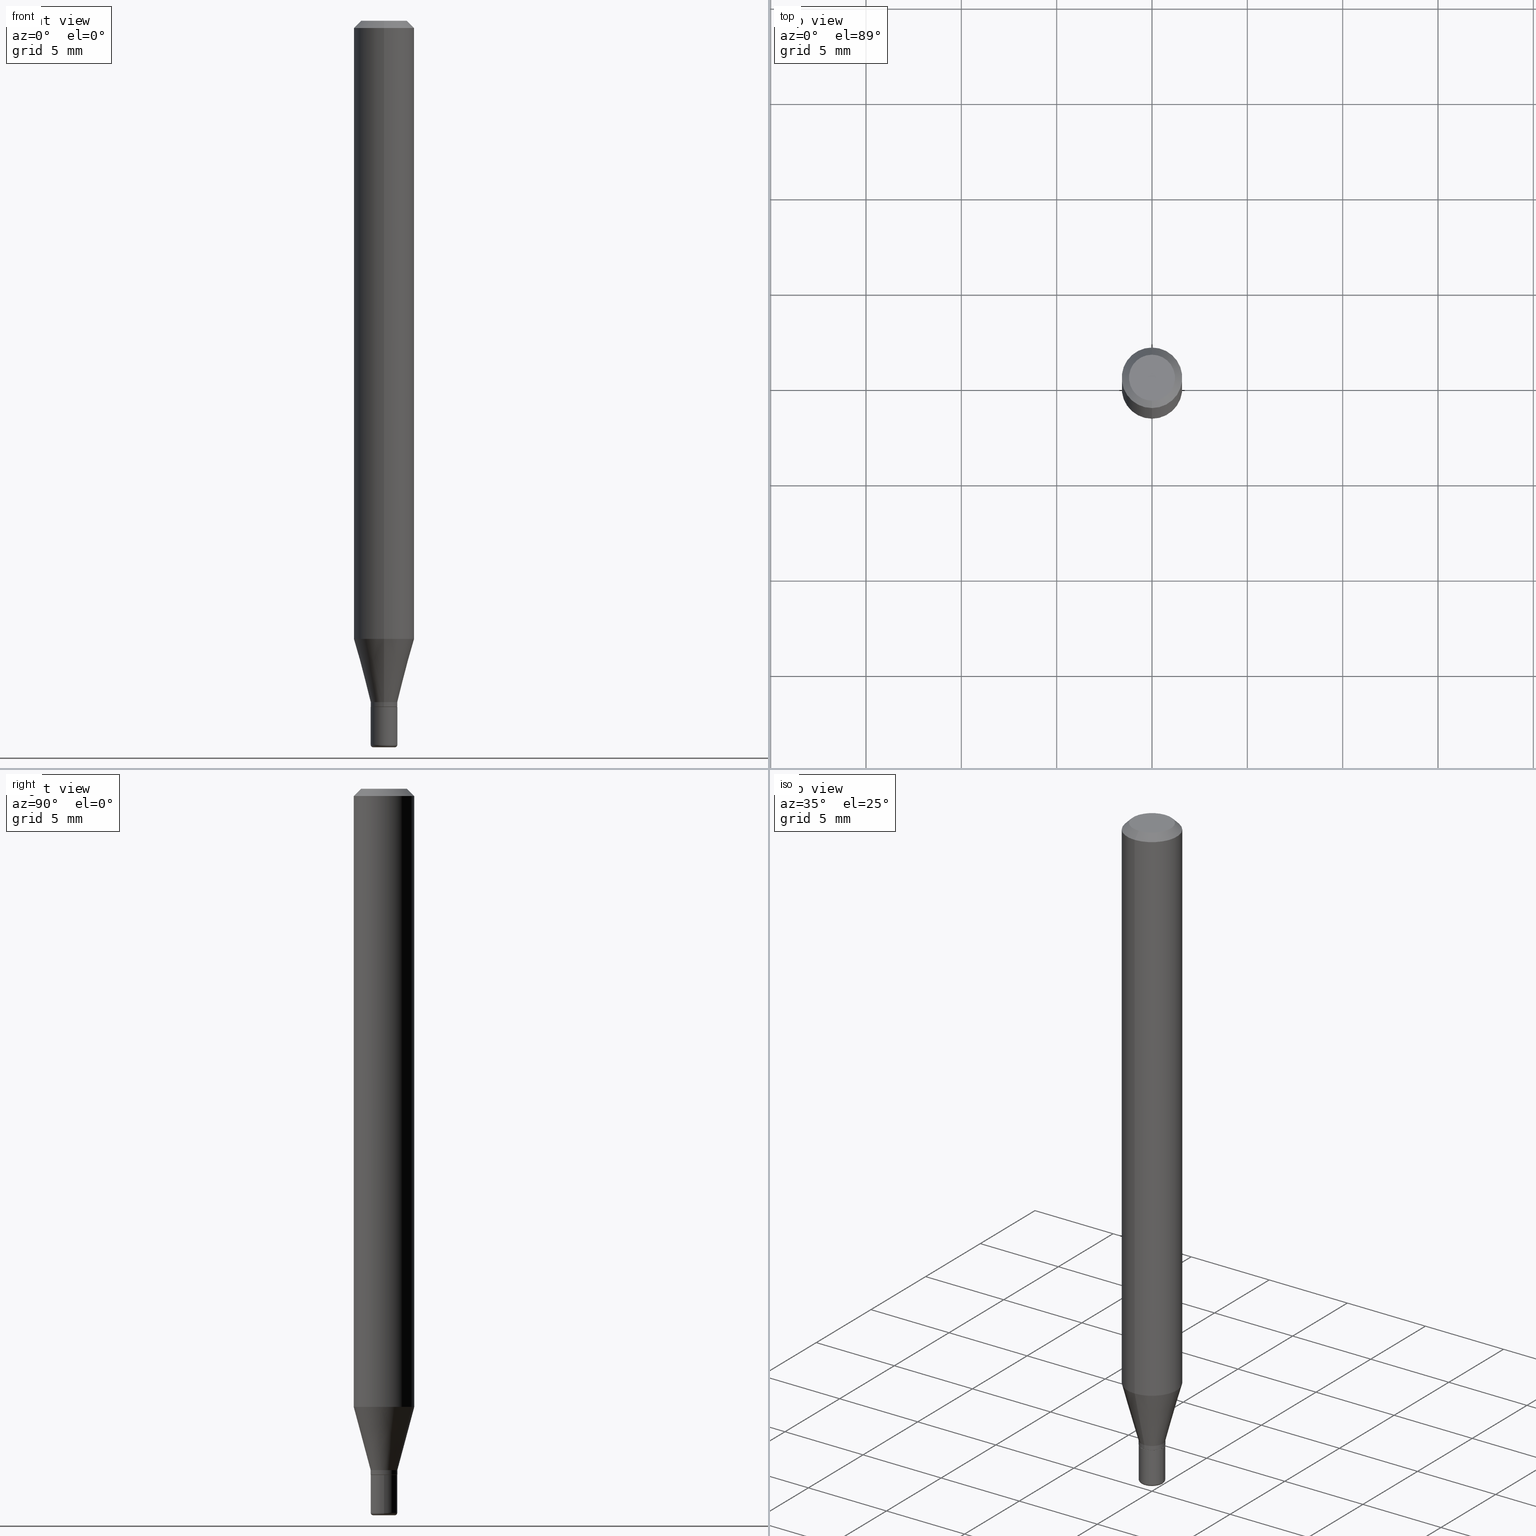
[diagram: canonical four-view strip — front | top / right | iso, engineering-drawing reading convention]
A machine part, canonical four-view strip (front | top / right | iso — engineering-drawing reading convention). The complete STEP part file that produces these views, byte-faithful:
ISO-10303-21;
HEADER;
FILE_DESCRIPTION (( 'STEP AP203' ),
    '1' );
FILE_NAME ('09152.STEP',
    '2024-02-29T22:43:10',
    ( '' ),
    ( '' ),
    'SwSTEP 2.0',
    'SolidWorks 2023',
    '' );
FILE_SCHEMA (( 'CONFIG_CONTROL_DESIGN' ));
ENDSEC;

DATA;
#1 = DIRECTION ( 'NONE',  ( -6.982962677686265922E-15, -1.000000000000000000, 3.491536060866079986E-15 ) ) ;
#2 = DIRECTION ( 'NONE',  ( -2.445430594000756604E-29, 3.491536060866079986E-15, 1.000000000000000000 ) ) ;
#3 = CARTESIAN_POINT ( 'NONE',  ( 3.465175151699072961E-29, -4.947506598247235895E-15, -1.417000000000000259 ) ) ;
#4 = CIRCLE ( 'NONE', #404, 0.02750000000000010075 ) ;
#5 = ORIENTED_EDGE ( 'NONE', *, *, #496, .F. ) ;
#6 = EDGE_CURVE ( 'NONE', #331, #274, #177, .T. ) ;
#7 = DIRECTION ( 'NONE',  ( -6.982962677686265922E-15, -1.000000000000000000, 0.000000000000000000 ) ) ;
#8 = CARTESIAN_POINT ( 'NONE',  ( 3.440720845759065849E-29, -4.912591237638575836E-15, -1.407000000000000250 ) ) ;
#9 = LINE ( 'NONE', #488, #160 ) ;
#10 = CARTESIAN_POINT ( 'NONE',  ( -1.885399922974951451E-16, -0.02700000000000503733, -1.417000000000000259 ) ) ;
#11 = CIRCLE ( 'NONE', #285, 0.06250000000000000000 ) ;
#12 = VECTOR ( 'NONE', #203, 39.37007874015748143 ) ;
#13 = COORDINATED_UNIVERSAL_TIME_OFFSET ( 5, 0, .BEHIND. ) ;
#14 = DATE_AND_TIME ( #370, #162 ) ;
#15 = ORIENTED_EDGE ( 'NONE', *, *, #238, .F. ) ;
#16 = EDGE_CURVE ( 'NONE', #104, #272, #148, .T. ) ;
#17 = VECTOR ( 'NONE', #33, 39.37007874015748143 ) ;
#18 = SHAPE_DEFINITION_REPRESENTATION ( #433, #366 ) ;
#19 = CARTESIAN_POINT ( 'NONE',  ( 3.655975865246779122E-29, -5.219764601570503141E-15, -1.495000000000000107 ) ) ;
#20 = EDGE_LOOP ( 'NONE', ( #381, #106 ) ) ;
#21 = PERSON_AND_ORGANIZATION ( #183, #117 ) ;
#22 = DIRECTION ( 'NONE',  ( -2.445430594000756604E-29, 3.491536060866079986E-15, 1.000000000000000000 ) ) ;
#23 = EDGE_LOOP ( 'NONE', ( #450, #200, #353, #420 ) ) ;
#24 = PLANE ( 'NONE',  #432 ) ;
#25 = VERTEX_POINT ( 'NONE', #324 ) ;
#26 = AXIS2_PLACEMENT_3D ( 'NONE', #393, #354, #511 ) ;
#27 = LINE ( 'NONE', #194, #277 ) ;
#28 = EDGE_LOOP ( 'NONE', ( #469, #120, #59, #100 ) ) ;
#29 = CARTESIAN_POINT ( 'NONE',  ( 3.840629472727447874E-16, 0.04750000000000000749, 1.073394357713768884E-16 ) ) ;
#30 = ORIENTED_EDGE ( 'NONE', *, *, #207, .F. ) ;
#31 = DIRECTION ( 'NONE',  ( -2.445430594000756604E-29, 3.491536060866079986E-15, 1.000000000000000000 ) ) ;
#32 = ORIENTED_EDGE ( 'NONE', *, *, #304, .F. ) ;
#33 = DIRECTION ( 'NONE',  ( -2.445430594000756604E-29, 3.491536060866079986E-15, 1.000000000000000000 ) ) ;
#34 = CIRCLE ( 'NONE', #492, 0.02249999999999999917 ) ;
#35 = AXIS2_PLACEMENT_3D ( 'NONE', #239, #37, #107 ) ;
#36 = ORIENTED_EDGE ( 'NONE', *, *, #427, .T. ) ;
#37 = DIRECTION ( 'NONE',  ( -2.445430594000756604E-29, 3.491536060866079986E-15, 1.000000000000000000 ) ) ;
#38 = DIRECTION ( 'NONE',  ( -6.982962677686265922E-15, -1.000000000000000000, 3.483106191921935554E-15 ) ) ;
#39 = EDGE_CURVE ( 'NONE', #351, #338, #4, .T. ) ;
#40 = CARTESIAN_POINT ( 'NONE',  ( 3.463952436402072633E-29, -4.945760830216803404E-15, -1.416500000000000314 ) ) ;
#41 = DIRECTION ( 'NONE',  ( 1.000000000000000000, -6.982962677686269077E-15, 0.000000000000000000 ) ) ;
#42 = CARTESIAN_POINT ( 'NONE',  ( 3.655975865246778562E-29, -5.219764601570502352E-15, -1.494999999999999662 ) ) ;
#43 = EDGE_CURVE ( 'NONE', #502, #195, #11, .T. ) ;
#44 = TOROIDAL_SURFACE ( 'NONE', #441, 0.02249999999999999917, 0.005000000000000179648 ) ;
#45 = DESIGN_CONTEXT ( 'detailed design', #439, 'design' ) ;
#46 = CARTESIAN_POINT ( 'NONE',  ( 1.953992523340626318E-16, 0.02749999999999518802, -1.407000000000000250 ) ) ;
#47 = PERSON_AND_ORGANIZATION_ROLE ( 'design_owner' ) ;
#48 = CARTESIAN_POINT ( 'NONE',  ( 3.440720845759065849E-29, -4.912591237638575836E-15, -1.407000000000000250 ) ) ;
#49 = AXIS2_PLACEMENT_3D ( 'NONE', #473, #281, #438 ) ;
#50 = APPROVAL_PERSON_ORGANIZATION ( #413, #70, #217 ) ;
#51 = LENGTH_MEASURE_WITH_UNIT ( LENGTH_MEASURE( 0.02539999999999999897 ), #298 );
#52 = DIRECTION ( 'NONE',  ( -2.445468806185136597E-29, 3.491481338843145583E-15, 1.000000000000000000 ) ) ;
#53 = CARTESIAN_POINT ( 'NONE',  ( 0.000000000000000000, 0.000000000000000000, 0.000000000000000000 ) ) ;
#54 = DIRECTION ( 'NONE',  ( -6.982962677686265922E-15, -1.000000000000000000, 3.491536060866079986E-15 ) ) ;
#55 = ORIENTED_EDGE ( 'NONE', *, *, #484, .F. ) ;
#56 =( GEOMETRIC_REPRESENTATION_CONTEXT ( 3 ) GLOBAL_UNCERTAINTY_ASSIGNED_CONTEXT ( ( #211 ) ) GLOBAL_UNIT_ASSIGNED_CONTEXT ( ( #213, #290, #448 ) ) REPRESENTATION_CONTEXT ( 'NONE', 'WORKASPACE' ) );
#57 = SECURITY_CLASSIFICATION ( '', '', #379 ) ;
#58 = DIRECTION ( 'NONE',  ( 1.000000000000000000, -6.982962677686280121E-15, 0.000000000000000000 ) ) ;
#59 = ORIENTED_EDGE ( 'NONE', *, *, #447, .T. ) ;
#60 = CARTESIAN_POINT ( 'NONE',  ( 3.465175151699072961E-29, -4.947506598247235895E-15, -1.417000000000000259 ) ) ;
#61 = ORIENTED_EDGE ( 'NONE', *, *, #397, .F. ) ;
#62 = EDGE_CURVE ( 'NONE', #223, #108, #477, .T. ) ;
#63 = CARTESIAN_POINT ( 'NONE',  ( -3.773273898774340269E-16, -0.04750000000000000749, 4.390353615536545300E-16 ) ) ;
#64 = ORIENTED_EDGE ( 'NONE', *, *, #92, .T. ) ;
#65 = AXIS2_PLACEMENT_3D ( 'NONE', #171, #52, #407 ) ;
#66 = EDGE_CURVE ( 'NONE', #346, #475, #357, .T. ) ;
#67 = VECTOR ( 'NONE', #208, 39.37007874015748143 ) ;
#68 = LINE ( 'NONE', #437, #77 ) ;
#69 = EDGE_LOOP ( 'NONE', ( #461, #491, #55, #426 ) ) ;
#70 = APPROVAL ( #408, 'UNSPECIFIED' ) ;
#71 = DIRECTION ( 'NONE',  ( -6.982962677686265922E-15, -1.000000000000000000, 4.370956789862821150E-15 ) ) ;
#72 = EDGE_LOOP ( 'NONE', ( #5, #118, #36, #276 ) ) ;
#73 = FACE_OUTER_BOUND ( 'NONE', #166, .T. ) ;
#74 = FACE_OUTER_BOUND ( 'NONE', #269, .T. ) ;
#75 = CIRCLE ( 'NONE', #192, 0.02750000000000010075 ) ;
#76 = CARTESIAN_POINT ( 'NONE',  ( -4.287811248607203282E-16, -0.06250000000000005551, -0.01499999999999948597 ) ) ;
#77 = VECTOR ( 'NONE', #517, 39.37007874015748143 ) ;
#78 = CARTESIAN_POINT ( 'NONE',  ( 3.440720845759065849E-29, -4.912591237638575836E-15, -1.407000000000000250 ) ) ;
#79 = PRODUCT_RELATED_PRODUCT_CATEGORY ( 'detail', '', ( #297 ) ) ;
#80 = ADVANCED_FACE ( 'NONE', ( #206 ), #212, .T. ) ;
#81 = ADVANCED_FACE ( 'NONE', ( #74 ), #244, .T. ) ;
#82 = CYLINDRICAL_SURFACE ( 'NONE', #94, 0.06250000000000000000 ) ;
#83 = DIRECTION ( 'NONE',  ( -6.982962677686265133E-15, -1.000000000000000000, 3.491536060866079986E-15 ) ) ;
#84 = PERSON_AND_ORGANIZATION ( #183, #117 ) ;
#85 = CARTESIAN_POINT ( 'NONE',  ( -0.02249999999999999917, -5.059892486024480852E-15, -1.495000000000000107 ) ) ;
#86 = PERSON_AND_ORGANIZATION_ROLE ( 'creator' ) ;
#87 = AXIS2_PLACEMENT_3D ( 'NONE', #260, #299, #409 ) ;
#88 = TOROIDAL_SURFACE ( 'NONE', #405, 0.02249999999999999917, 0.005000000000000179648 ) ;
#89 = ORIENTED_EDGE ( 'NONE', *, *, #157, .T. ) ;
#90 = APPLICATION_PROTOCOL_DEFINITION ( 'international standard', 'config_control_design', 1994, #439 ) ;
#91 = DIRECTION ( 'NONE',  ( 1.000000000000000000, 0.000000000000000000, 0.000000000000000000 ) ) ;
#92 = EDGE_CURVE ( 'NONE', #223, #510, #34, .T. ) ;
#93 = AXIS2_PLACEMENT_3D ( 'NONE', #374, #136, #271 ) ;
#94 = AXIS2_PLACEMENT_3D ( 'NONE', #359, #356, #1 ) ;
#95 = FACE_OUTER_BOUND ( 'NONE', #23, .T. ) ;
#96 = EDGE_LOOP ( 'NONE', ( #240, #185, #518, #495 ) ) ;
#97 = ADVANCED_FACE ( 'NONE', ( #210 ), #365, .F. ) ;
#98 = CC_DESIGN_PERSON_AND_ORGANIZATION_ASSIGNMENT ( #258, #47, ( #297 ) ) ;
#99 = CARTESIAN_POINT ( 'NONE',  ( -4.364351673553916201E-16, -0.06250000000000000000, 2.182210038041299992E-16 ) ) ;
#100 = ORIENTED_EDGE ( 'NONE', *, *, #347, .F. ) ;
#101 = VECTOR ( 'NONE', #267, 39.37007874015748143 ) ;
#102 = DIRECTION ( 'NONE',  ( -2.445468806185136597E-29, 3.491481338843145583E-15, 1.000000000000000000 ) ) ;
#103 = CC_DESIGN_PERSON_AND_ORGANIZATION_ASSIGNMENT ( #428, #221, ( #471 ) ) ;
#104 = VERTEX_POINT ( 'NONE', #10 ) ;
#105 = DIRECTION ( 'NONE',  ( -2.445468806185136597E-29, 3.491481338843145583E-15, 1.000000000000000000 ) ) ;
#106 = ORIENTED_EDGE ( 'NONE', *, *, #198, .T. ) ;
#107 = DIRECTION ( 'NONE',  ( -6.982962677686265922E-15, -1.000000000000000000, 0.000000000000000000 ) ) ;
#108 = VERTEX_POINT ( 'NONE', #490 ) ;
#109 = EDGE_CURVE ( 'NONE', #338, #351, #75, .T. ) ;
#110 = CC_DESIGN_APPROVAL ( #138, ( #471 ) ) ;
#111 = DIRECTION ( 'NONE',  ( -6.982962677686265922E-15, -1.000000000000000000, 0.000000000000000000 ) ) ;
#112 = CARTESIAN_POINT ( 'NONE',  ( 3.465229298364339647E-29, -4.947429057140738329E-15, -1.417000000000000259 ) ) ;
#113 = ORIENTED_EDGE ( 'NONE', *, *, #337, .T. ) ;
#114 = CARTESIAN_POINT ( 'NONE',  ( 3.465229298364339647E-29, -4.947429057140738329E-15, -1.417000000000000259 ) ) ;
#115 = ORIENTED_EDGE ( 'NONE', *, *, #500, .F. ) ;
#116 = LINE ( 'NONE', #361, #125 ) ;
#117 = ORGANIZATION ( 'UNSPECIFIED', 'UNSPECIFIED', '' ) ;
#118 = ORIENTED_EDGE ( 'NONE', *, *, #109, .T. ) ;
#119 = APPROVAL_DATE_TIME ( #14, #70 ) ;
#120 = ORIENTED_EDGE ( 'NONE', *, *, #500, .T. ) ;
#121 = APPROVAL_STATUS ( 'not_yet_approved' ) ;
#122 = DIRECTION ( 'NONE',  ( -2.445468806185136597E-29, 3.491481338843145583E-15, 1.000000000000000000 ) ) ;
#123 = DIRECTION ( 'NONE',  ( -6.982962677686265922E-15, -1.000000000000000000, 0.000000000000000000 ) ) ;
#124 = CONICAL_SURFACE ( 'NONE', #292, 0.02700000000000008990, 0.7853981633975507526 ) ;
#125 = VECTOR ( 'NONE', #280, 39.37007874015748854 ) ;
#126 = DATE_AND_TIME ( #169, #202 ) ;
#127 = DIRECTION ( 'NONE',  ( -2.445430594000756604E-29, 3.491536060866079986E-15, 1.000000000000000000 ) ) ;
#128 = PERSON_AND_ORGANIZATION_ROLE ( 'creator' ) ;
#129 = ADVANCED_FACE ( 'NONE', ( #301 ), #415, .T. ) ;
#130 = AXIS2_PLACEMENT_3D ( 'NONE', #219, #22, #234 ) ;
#131 = ORIENTED_EDGE ( 'NONE', *, *, #164, .F. ) ;
#132 = VECTOR ( 'NONE', #214, 39.37007874015748143 ) ;
#133 = DIRECTION ( 'NONE',  ( -2.445430594000756604E-29, 3.491536060866079986E-15, 1.000000000000000000 ) ) ;
#134 = ORIENTED_EDGE ( 'NONE', *, *, #427, .F. ) ;
#135 = COORDINATED_UNIVERSAL_TIME_OFFSET ( 5, 0, .BEHIND. ) ;
#136 = DIRECTION ( 'NONE',  ( -2.445430594000756604E-29, 3.491536060866079986E-15, 1.000000000000000000 ) ) ;
#137 = ORIENTED_EDGE ( 'NONE', *, *, #447, .F. ) ;
#138 = APPROVAL ( #121, 'UNSPECIFIED' ) ;
#139 = DIRECTION ( 'NONE',  ( 1.000000000000000000, -6.982962677686270655E-15, 4.883557194083114022E-29 ) ) ;
#140 = ORIENTED_EDGE ( 'NONE', *, *, #484, .T. ) ;
#141 = AXIS2_PLACEMENT_3D ( 'NONE', #53, #133, #54 ) ;
#142 = CIRCLE ( 'NONE', #247, 0.005000000000000177046 ) ;
#143 = CARTESIAN_POINT ( 'NONE',  ( -0.02750000000000000014, -4.888197577021592222E-15, -1.417000000000000259 ) ) ;
#144 = ORIENTED_EDGE ( 'NONE', *, *, #289, .T. ) ;
#145 = DIRECTION ( 'NONE',  ( 1.000000000000000000, -6.982962677686269077E-15, 0.000000000000000000 ) ) ;
#146 = ORIENTED_EDGE ( 'NONE', *, *, #92, .F. ) ;
#147 = CARTESIAN_POINT ( 'NONE',  ( 3.121294352947271475E-29, -4.456520588492188599E-15, -1.276378221735090079 ) ) ;
#148 = LINE ( 'NONE', #400, #236 ) ;
#149 = CIRCLE ( 'NONE', #65, 0.02750000000000017708 ) ;
#150 = CC_DESIGN_APPROVAL ( #70, ( #363 ) ) ;
#151 = FACE_OUTER_BOUND ( 'NONE', #72, .T. ) ;
#152 = DIRECTION ( 'NONE',  ( 5.024295867788576727E-15, 0.7071067811866224018, 0.7071067811864726327 ) ) ;
#153 = CARTESIAN_POINT ( 'NONE',  ( 3.463952436402072633E-29, -4.945760830216803404E-15, -1.416500000000000314 ) ) ;
#154 = DIMENSIONAL_EXPONENTS ( 1.000000000000000000, 0.000000000000000000, 0.000000000000000000, 0.000000000000000000, 0.000000000000000000, 0.000000000000000000, 0.000000000000000000 ) ;
#155 = ORIENTED_EDGE ( 'NONE', *, *, #316, .T. ) ;
#156 = CARTESIAN_POINT ( 'NONE',  ( 1.920314736364070050E-16, 0.02749999999999505271, -1.417000000000000259 ) ) ;
#157 = EDGE_CURVE ( 'NONE', #389, #108, #149, .T. ) ;
#158 = ADVANCED_FACE ( 'NONE', ( #216 ), #124, .T. ) ;
#159 = DIRECTION ( 'NONE',  ( -6.982962677686265922E-15, -1.000000000000000000, 3.491536060866080381E-15 ) ) ;
#160 = VECTOR ( 'NONE', #127, 39.37007874015748143 ) ;
#161 = DIRECTION ( 'NONE',  ( 1.000000000000000000, -6.982962677686279332E-15, 0.000000000000000000 ) ) ;
#162 = LOCAL_TIME ( 17, 43, 10.00000000000000000, #333 ) ;
#163 = EDGE_LOOP ( 'NONE', ( #140, #458, #318, #197 ) ) ;
#164 = EDGE_CURVE ( 'NONE', #475, #338, #9, .T. ) ;
#165 = LINE ( 'NONE', #46, #132 ) ;
#166 = EDGE_LOOP ( 'NONE', ( #355, #436 ) ) ;
#167 = MANIFOLD_SOLID_BREP ( 'Body-Move/Copy2[2]', #503 ) ;
#168 = CC_DESIGN_PERSON_AND_ORGANIZATION_ASSIGNMENT ( #497, #375, ( #57 ) ) ;
#169 = CALENDAR_DATE ( 2024, 29, 2 ) ;
#170 = AXIS2_PLACEMENT_3D ( 'NONE', #220, #102, #145 ) ;
#171 = CARTESIAN_POINT ( 'NONE',  ( 3.655975865246778562E-29, -5.219764601570502352E-15, -1.494999999999999662 ) ) ;
#172 = CIRCLE ( 'NONE', #218, 0.02750000000000009034 ) ;
#173 = CALENDAR_DATE ( 2024, 29, 2 ) ;
#174 = ADVANCED_FACE ( 'NONE', ( #256 ), #421, .T. ) ;
#175 = VERTEX_POINT ( 'NONE', #143 ) ;
#176 = DIRECTION ( 'NONE',  ( -2.445430594000756604E-29, 3.491536060866079986E-15, 1.000000000000000000 ) ) ;
#177 = CIRCLE ( 'NONE', #411, 0.04750000000000000749 ) ;
#178 = ORIENTED_EDGE ( 'NONE', *, *, #496, .T. ) ;
#179 = CIRCLE ( 'NONE', #310, 0.02700000000000008990 ) ;
#180 = ADVANCED_FACE ( 'NONE', ( #419 ), #44, .T. ) ;
#181 = CC_DESIGN_SECURITY_CLASSIFICATION ( #57, ( #471 ) ) ;
#182 = COORDINATED_UNIVERSAL_TIME_OFFSET ( 5, 0, .BEHIND. ) ;
#183 = PERSON ( 'UNSPECIFIED', 'UNSPECIFIED', 'UNSPECIFIED', ('UNSPECIFIED'), ('UNSPECIFIED'), ('UNSPECIFIED') ) ;
#184 = DIRECTION ( 'NONE',  ( 1.000000000000000000, -6.982962677686270655E-15, 4.883557194083114022E-29 ) ) ;
#185 = ORIENTED_EDGE ( 'NONE', *, *, #62, .T. ) ;
#186 = APPROVAL_ROLE ( '' ) ;
#187 = CARTESIAN_POINT ( 'NONE',  ( -0.02249999999999999917, -5.050857620977584666E-15, -1.500000000000000444 ) ) ;
#188 = EDGE_LOOP ( 'NONE', ( #235, #315, #144, #434 ) ) ;
#189 = DATE_AND_TIME ( #305, #505 ) ;
#190 = DIRECTION ( 'NONE',  ( -2.445430594000756604E-29, 3.491536060866079986E-15, 1.000000000000000000 ) ) ;
#191 = ORIENTED_EDGE ( 'NONE', *, *, #392, .F. ) ;
#192 = AXIS2_PLACEMENT_3D ( 'NONE', #48, #410, #7 ) ;
#193 = AXIS2_PLACEMENT_3D ( 'NONE', #42, #369, #255 ) ;
#194 = CARTESIAN_POINT ( 'NONE',  ( 4.364351673553919652E-16, 0.06249999999999995143, -0.01499999999999992138 ) ) ;
#195 = VERTEX_POINT ( 'NONE', #418 ) ;
#196 = CARTESIAN_POINT ( 'NONE',  ( 3.121294352947271475E-29, -4.456520588492188599E-15, -1.276378221735090079 ) ) ;
#197 = ORIENTED_EDGE ( 'NONE', *, *, #417, .F. ) ;
#198 = EDGE_CURVE ( 'NONE', #274, #331, #332, .T. ) ;
#199 = CARTESIAN_POINT ( 'NONE',  ( 0.02750000000000000014, -5.139460530777110821E-15, -1.417000000000000259 ) ) ;
#200 = ORIENTED_EDGE ( 'NONE', *, *, #383, .T. ) ;
#201 = ADVANCED_FACE ( 'NONE', ( #95 ), #340, .T. ) ;
#202 = LOCAL_TIME ( 17, 43, 10.00000000000000000, #373 ) ;
#203 = DIRECTION ( 'NONE',  ( -2.445468806185136877E-29, 3.491481338843145188E-15, 1.000000000000000000 ) ) ;
#204 = CARTESIAN_POINT ( 'NONE',  ( -6.680608225847972664E-45, 9.538436538043716084E-31, 2.731873986625157031E-16 ) ) ;
#205 = DIRECTION ( 'NONE',  ( -6.982962677686265922E-15, -1.000000000000000000, 4.370956789862821150E-15 ) ) ;
#206 = FACE_OUTER_BOUND ( 'NONE', #396, .T. ) ;
#207 = EDGE_CURVE ( 'NONE', #510, #223, #455, .T. ) ;
#208 = DIRECTION ( 'NONE',  ( -2.445430594000756604E-29, 3.491536060866079986E-15, 1.000000000000000000 ) ) ;
#209 = EDGE_CURVE ( 'NONE', #195, #502, #388, .T. ) ;
#210 = FACE_OUTER_BOUND ( 'NONE', #303, .T. ) ;
#211 = UNCERTAINTY_MEASURE_WITH_UNIT (LENGTH_MEASURE( 1.000000000000000082E-05 ), #213, 'distance_accuracy_value', 'NONE');
#212 = CONICAL_SURFACE ( 'NONE', #49, 0.06250000000000000000, 0.7853981633974488341 ) ;
#213 =( CONVERSION_BASED_UNIT ( 'INCH', #51 ) LENGTH_UNIT ( ) NAMED_UNIT ( #154 ) );
#214 = DIRECTION ( 'NONE',  ( 1.839019923739596371E-15, 0.2588190451025244032, 0.9659258262890673130 ) ) ;
#215 = ADVANCED_FACE ( 'NONE', ( #425 ), #24, .F. ) ;
#216 = FACE_OUTER_BOUND ( 'NONE', #465, .T. ) ;
#217 = APPROVAL_ROLE ( '' ) ;
#218 = AXIS2_PLACEMENT_3D ( 'NONE', #153, #31, #111 ) ;
#219 = CARTESIAN_POINT ( 'NONE',  ( 3.465175151699072961E-29, -4.947506598247235895E-15, -1.417000000000000259 ) ) ;
#220 = CARTESIAN_POINT ( 'NONE',  ( 3.668203209277706016E-29, -5.237222008264719754E-15, -1.500000000000000444 ) ) ;
#221 = PERSON_AND_ORGANIZATION_ROLE ( 'design_supplier' ) ;
#222 = DIRECTION ( 'NONE',  ( -6.982962677686265922E-15, -1.000000000000000000, 3.483106191921935554E-15 ) ) ;
#223 = VERTEX_POINT ( 'NONE', #187 ) ;
#224 = EDGE_CURVE ( 'NONE', #346, #104, #422, .T. ) ;
#225 = AXIS2_PLACEMENT_3D ( 'NONE', #40, #275, #431 ) ;
#226 = FACE_OUTER_BOUND ( 'NONE', #307, .T. ) ;
#227 = EDGE_LOOP ( 'NONE', ( #499, #64, #242, #115 ) ) ;
#228 = CC_DESIGN_DATE_AND_TIME_ASSIGNMENT ( #262, #462, ( #57 ) ) ;
#229 = ADVANCED_FACE ( 'NONE', ( #506 ), #88, .T. ) ;
#230 = APPROVAL_STATUS ( 'not_yet_approved' ) ;
#231 = FACE_OUTER_BOUND ( 'NONE', #442, .T. ) ;
#232 = ORIENTED_EDGE ( 'NONE', *, *, #293, .T. ) ;
#233 = ADVANCED_FACE ( 'NONE', ( #231 ), #313, .F. ) ;
#234 = DIRECTION ( 'NONE',  ( -6.982962677686265922E-15, -1.000000000000000000, 0.000000000000000000 ) ) ;
#235 = ORIENTED_EDGE ( 'NONE', *, *, #337, .F. ) ;
#236 = VECTOR ( 'NONE', #481, 39.37007874015748143 ) ;
#237 = AXIS2_PLACEMENT_3D ( 'NONE', #60, #457, #464 ) ;
#238 = EDGE_CURVE ( 'NONE', #266, #502, #460, .T. ) ;
#239 = CARTESIAN_POINT ( 'NONE',  ( 3.440720845759065849E-29, -4.912591237638575836E-15, -1.407000000000000250 ) ) ;
#240 = ORIENTED_EDGE ( 'NONE', *, *, #207, .T. ) ;
#241 = CARTESIAN_POINT ( 'NONE',  ( 1.936228954946625769E-16, 0.02699999999999514247, -1.417000000000000259 ) ) ;
#242 = ORIENTED_EDGE ( 'NONE', *, *, #257, .T. ) ;
#243 = CARTESIAN_POINT ( 'NONE',  ( 3.197442310920783026E-16, 0.02749999999999518802, -1.407000000000000250 ) ) ;
#244 = CYLINDRICAL_SURFACE ( 'NONE', #321, 0.02750000000000009381 ) ;
#245 = AXIS2_PLACEMENT_3D ( 'NONE', #302, #176, #222 ) ;
#246 = CIRCLE ( 'NONE', #225, 0.02750000000000009034 ) ;
#247 = AXIS2_PLACEMENT_3D ( 'NONE', #509, #423, #58 ) ;
#248 = DIRECTION ( 'NONE',  ( 2.438088387897960049E-29, -3.491481338843145188E-15, -1.000000000000000000 ) ) ;
#249 = DIRECTION ( 'NONE',  ( -6.982962677686265922E-15, -1.000000000000000000, 0.000000000000000000 ) ) ;
#250 = LINE ( 'NONE', #401, #12 ) ;
#251 = CARTESIAN_POINT ( 'NONE',  ( 3.668145891001062423E-31, -5.237304091299016762E-17, -0.01499999999999970281 ) ) ;
#252 = CARTESIAN_POINT ( 'NONE',  ( -4.364351673553912750E-16, -0.06250000000000005551, -0.01499999999999948597 ) ) ;
#253 = APPROVAL_ROLE ( '' ) ;
#254 = ORIENTED_EDGE ( 'NONE', *, *, #224, .T. ) ;
#255 = DIRECTION ( 'NONE',  ( 1.000000000000000000, -6.982962677686270655E-15, 0.000000000000000000 ) ) ;
#256 = FACE_OUTER_BOUND ( 'NONE', #69, .T. ) ;
#257 = EDGE_CURVE ( 'NONE', #510, #389, #142, .T. ) ;
#258 = PERSON_AND_ORGANIZATION ( #183, #117 ) ;
#259 = CIRCLE ( 'NONE', #463, 0.02750000000000000014 ) ;
#260 = CARTESIAN_POINT ( 'NONE',  ( 3.582686580359767159E-29, -5.359686688179454114E-15, -1.500000000000000444 ) ) ;
#261 = ADVANCED_FACE ( 'NONE', ( #226 ), #380, .T. ) ;
#262 = DATE_AND_TIME ( #270, #312 ) ;
#263 = CARTESIAN_POINT ( 'NONE',  ( 0.000000000000000000, 0.000000000000000000, 0.000000000000000000 ) ) ;
#264 = ADVANCED_FACE ( 'NONE', ( #385 ), #501, .T. ) ;
#265 = CARTESIAN_POINT ( 'NONE',  ( 3.655975865246779122E-29, -5.219764601570503141E-15, -1.495000000000000107 ) ) ;
#266 = VERTEX_POINT ( 'NONE', #273 ) ;
#267 = DIRECTION ( 'NONE',  ( -2.445430594000756604E-29, 3.491536060866079986E-15, 1.000000000000000000 ) ) ;
#268 = AXIS2_PLACEMENT_3D ( 'NONE', #85, #391, #320 ) ;
#269 = EDGE_LOOP ( 'NONE', ( #131, #485, #394, #327 ) ) ;
#270 = CALENDAR_DATE ( 2024, 29, 2 ) ;
#271 = DIRECTION ( 'NONE',  ( -6.982962677686265133E-15, -1.000000000000000000, 3.491536060866079986E-15 ) ) ;
#272 = VERTEX_POINT ( 'NONE', #429 ) ;
#273 = CARTESIAN_POINT ( 'NONE',  ( -4.364351673553605587E-16, -0.06250000000000449640, -1.276378221735089857 ) ) ;
#274 = VERTEX_POINT ( 'NONE', #63 ) ;
#275 = DIRECTION ( 'NONE',  ( -2.445430594000756604E-29, 3.491536060866079986E-15, 1.000000000000000000 ) ) ;
#276 = ORIENTED_EDGE ( 'NONE', *, *, #383, .F. ) ;
#277 = VECTOR ( 'NONE', #317, 39.37007874015748143 ) ;
#278 = LINE ( 'NONE', #435, #17 ) ;
#279 = ORIENTED_EDGE ( 'NONE', *, *, #296, .T. ) ;
#280 = DIRECTION ( 'NONE',  ( -1.807323732225326195E-15, -0.2588190451025176309, 0.9659258262890690894 ) ) ;
#281 = DIRECTION ( 'NONE',  ( 2.445430594000756604E-29, -3.491536060866079986E-15, -1.000000000000000000 ) ) ;
#282 = LINE ( 'NONE', #443, #67 ) ;
#283 = APPROVAL ( #230, 'UNSPECIFIED' ) ;
#284 = DIRECTION ( 'NONE',  ( -2.445430594000756604E-29, 3.491536060866079986E-15, 1.000000000000000000 ) ) ;
#285 = AXIS2_PLACEMENT_3D ( 'NONE', #251, #446, #38 ) ;
#286 = AXIS2_PLACEMENT_3D ( 'NONE', #114, #395, #161 ) ;
#287 = DIRECTION ( 'NONE',  ( -2.445468806185136597E-29, 3.491481338843145583E-15, 1.000000000000000000 ) ) ;
#288 = CARTESIAN_POINT ( 'NONE',  ( 1.918465386552623249E-16, 0.02699999999999514247, -1.417000000000000259 ) ) ;
#289 = EDGE_CURVE ( 'NONE', #331, #195, #27, .T. ) ;
#290 =( NAMED_UNIT ( * ) PLANE_ANGLE_UNIT ( ) SI_UNIT ( $, .RADIAN. ) );
#291 = ORIENTED_EDGE ( 'NONE', *, *, #224, .F. ) ;
#292 = AXIS2_PLACEMENT_3D ( 'NONE', #454, #371, #335 ) ;
#293 = EDGE_CURVE ( 'NONE', #25, #195, #282, .T. ) ;
#294 = APPLICATION_PROTOCOL_DEFINITION ( 'international standard', 'config_control_design', 1994, #416 ) ;
#295 = CIRCLE ( 'NONE', #193, 0.02750000000000017708 ) ;
#296 = EDGE_CURVE ( 'NONE', #108, #175, #68, .T. ) ;
#297 = PRODUCT ( '09152', '09152', '', ( #452 ) ) ;
#298 =( LENGTH_UNIT ( ) NAMED_UNIT ( * ) SI_UNIT ( $, .METRE. ) );
#299 = DIRECTION ( 'NONE',  ( -2.438088387897960049E-29, 3.491481338843145188E-15, 1.000000000000000000 ) ) ;
#300 = CONICAL_SURFACE ( 'NONE', #35, 0.02750000000000010075, 0.2617993877991496854 ) ;
#301 = FACE_OUTER_BOUND ( 'NONE', #28, .T. ) ;
#302 = CARTESIAN_POINT ( 'NONE',  ( 3.668145891001062423E-31, -5.237304091299016762E-17, -0.01499999999999970281 ) ) ;
#303 = EDGE_LOOP ( 'NONE', ( #30, #146 ) ) ;
#304 = EDGE_CURVE ( 'NONE', #104, #346, #179, .T. ) ;
#305 = CALENDAR_DATE ( 2024, 29, 2 ) ;
#306 = DIRECTION ( 'NONE',  ( -2.445430594000756323E-29, 3.491536060866079986E-15, 1.000000000000000000 ) ) ;
#307 = EDGE_LOOP ( 'NONE', ( #89, #279, #61, #137 ) ) ;
#308 = DIRECTION ( 'NONE',  ( 6.982962677686265922E-15, 1.000000000000000000, -3.491536060866079986E-15 ) ) ;
#309 = CLOSED_SHELL ( 'NONE', ( #229, #261, #344, #129, #180, #97 ) ) ;
#310 = AXIS2_PLACEMENT_3D ( 'NONE', #3, #470, #440 ) ;
#311 = ORIENTED_EDGE ( 'NONE', *, *, #198, .F. ) ;
#312 = LOCAL_TIME ( 17, 43, 10.00000000000000000, #182 ) ;
#313 = PLANE ( 'NONE',  #349 ) ;
#314 = CC_DESIGN_DATE_AND_TIME_ASSIGNMENT ( #126, #368, ( #363 ) ) ;
#315 = ORIENTED_EDGE ( 'NONE', *, *, #6, .F. ) ;
#316 = EDGE_CURVE ( 'NONE', #266, #25, #504, .T. ) ;
#317 = DIRECTION ( 'NONE',  ( 4.937700262164550409E-15, 0.7071067811865454633, -0.7071067811865495711 ) ) ;
#318 = ORIENTED_EDGE ( 'NONE', *, *, #39, .F. ) ;
#319 = DIRECTION ( 'NONE',  ( -1.000000000000000000, 6.982962677686265922E-15, -4.876176775795935793E-29 ) ) ;
#320 = DIRECTION ( 'NONE',  ( -1.000000000000000000, 7.105427357601061812E-15, 0.000000000000000000 ) ) ;
#321 = AXIS2_PLACEMENT_3D ( 'NONE', #360, #362, #159 ) ;
#322 = AXIS2_PLACEMENT_3D ( 'NONE', #8, #330, #123 ) ;
#323 = CARTESIAN_POINT ( 'NONE',  ( -1.920314736363385959E-16, -0.02750000000000501349, -1.407000000000000250 ) ) ;
#324 = CARTESIAN_POINT ( 'NONE',  ( 4.440892098500935790E-16, 0.06249999999999551747, -1.276378221735090301 ) ) ;
#325 = ADVANCED_FACE ( 'NONE', ( #513 ), #82, .T. ) ;
#326 = CARTESIAN_POINT ( 'NONE',  ( 1.953992523340621634E-16, 0.02749999999999504924, -1.416500000000000314 ) ) ;
#327 = ORIENTED_EDGE ( 'NONE', *, *, #109, .F. ) ;
#328 = DIRECTION ( 'NONE',  ( -2.445430594000756604E-29, 3.491536060866079986E-15, 1.000000000000000000 ) ) ;
#329 = VERTEX_POINT ( 'NONE', #199 ) ;
#330 = DIRECTION ( 'NONE',  ( -2.445430594000756604E-29, 3.491536060866079986E-15, 1.000000000000000000 ) ) ;
#331 = VERTEX_POINT ( 'NONE', #29 ) ;
#332 = CIRCLE ( 'NONE', #93, 0.04750000000000000749 ) ;
#333 = COORDINATED_UNIVERSAL_TIME_OFFSET ( 5, 0, .BEHIND. ) ;
#334 = CIRCLE ( 'NONE', #367, 0.06250000000000000000 ) ;
#335 = DIRECTION ( 'NONE',  ( -6.982962677686265922E-15, -1.000000000000000000, 0.000000000000000000 ) ) ;
#336 = APPROVAL_DATE_TIME ( #406, #138 ) ;
#337 = EDGE_CURVE ( 'NONE', #274, #502, #399, .T. ) ;
#338 = VERTEX_POINT ( 'NONE', #243 ) ;
#339 = LOCAL_TIME ( 17, 43, 10.00000000000000000, #13 ) ;
#340 = CYLINDRICAL_SURFACE ( 'NONE', #141, 0.06250000000000000000 ) ;
#341 = ORIENTED_EDGE ( 'NONE', *, *, #39, .T. ) ;
#342 = CARTESIAN_POINT ( 'NONE',  ( 3.465175151699072961E-29, -4.947506598247235895E-15, -1.417000000000000259 ) ) ;
#343 = EDGE_LOOP ( 'NONE', ( #341, #178, #515, #134 ) ) ;
#344 = ADVANCED_FACE ( 'NONE', ( #73 ), #474, .F. ) ;
#345 = DIRECTION ( 'NONE',  ( -2.445468806185136597E-29, 3.491481338843145583E-15, 1.000000000000000000 ) ) ;
#346 = VERTEX_POINT ( 'NONE', #241 ) ;
#347 = EDGE_CURVE ( 'NONE', #175, #329, #412, .T. ) ;
#348 = DIRECTION ( 'NONE',  ( -6.982962677686265922E-15, -1.000000000000000000, 3.491536060866080381E-15 ) ) ;
#349 = AXIS2_PLACEMENT_3D ( 'NONE', #342, #306, #498 ) ;
#350 = ADVANCED_FACE ( 'NONE', ( #151 ), #300, .T. ) ;
#351 = VERTEX_POINT ( 'NONE', #323 ) ;
#352 = DIRECTION ( 'NONE',  ( 2.445430594000756323E-29, -3.491536060866079986E-15, -1.000000000000000000 ) ) ;
#353 = ORIENTED_EDGE ( 'NONE', *, *, #238, .T. ) ;
#354 = DIRECTION ( 'NONE',  ( 2.445430594000756604E-29, -3.491536060866079986E-15, -1.000000000000000000 ) ) ;
#355 = ORIENTED_EDGE ( 'NONE', *, *, #397, .T. ) ;
#356 = DIRECTION ( 'NONE',  ( -2.445430594000756604E-29, 3.491536060866079986E-15, 1.000000000000000000 ) ) ;
#357 = LINE ( 'NONE', #288, #486 ) ;
#358 = AXIS2_PLACEMENT_3D ( 'NONE', #466, #345, #387 ) ;
#359 = CARTESIAN_POINT ( 'NONE',  ( 0.000000000000000000, 0.000000000000000000, 0.000000000000000000 ) ) ;
#360 = CARTESIAN_POINT ( 'NONE',  ( 0.000000000000000000, 0.000000000000000000, 0.000000000000000000 ) ) ;
#361 = CARTESIAN_POINT ( 'NONE',  ( -1.920314736363385959E-16, -0.02750000000000501349, -1.407000000000000250 ) ) ;
#362 = DIRECTION ( 'NONE',  ( -2.445430594000756604E-29, 3.491536060866079986E-15, 1.000000000000000000 ) ) ;
#363 = PRODUCT_DEFINITION ( 'UNKNOWN', '', #471, #45 ) ;
#364 = CARTESIAN_POINT ( 'NONE',  ( 0.02750000000000017708, -5.411796075206875633E-15, -1.494999999999999662 ) ) ;
#365 = PLANE ( 'NONE',  #87 ) ;
#366 = ADVANCED_BREP_SHAPE_REPRESENTATION ( '09152', ( #516, #167, #493 ), #56 ) ;
#367 = AXIS2_PLACEMENT_3D ( 'NONE', #196, #328, #205 ) ;
#368 = DATE_TIME_ROLE ( 'creation_date' ) ;
#369 = DIRECTION ( 'NONE',  ( -2.445468806185136597E-29, 3.491481338843145583E-15, 1.000000000000000000 ) ) ;
#370 = CALENDAR_DATE ( 2024, 29, 2 ) ;
#371 = DIRECTION ( 'NONE',  ( -2.445430594000756604E-29, 3.491536060866079986E-15, 1.000000000000000000 ) ) ;
#372 = AXIS2_PLACEMENT_3D ( 'NONE', #156, #248, #319 ) ;
#373 = COORDINATED_UNIVERSAL_TIME_OFFSET ( 5, 0, .BEHIND. ) ;
#374 = CARTESIAN_POINT ( 'NONE',  ( -6.680608225847972664E-45, 9.538436538043716084E-31, 2.731873986625157031E-16 ) ) ;
#375 = PERSON_AND_ORGANIZATION_ROLE ( 'classification_officer' ) ;
#376 = AXIS2_PLACEMENT_3D ( 'NONE', #483, #122, #449 ) ;
#377 = DIRECTION ( 'NONE',  ( -2.445468806185136597E-29, 3.491481338843145583E-15, 1.000000000000000000 ) ) ;
#378 = EDGE_LOOP ( 'NONE', ( #155, #232, #508, #15 ) ) ;
#379 = SECURITY_CLASSIFICATION_LEVEL ( 'unclassified' ) ;
#380 = CYLINDRICAL_SURFACE ( 'NONE', #358, 0.02750000000000009034 ) ;
#381 = ORIENTED_EDGE ( 'NONE', *, *, #6, .T. ) ;
#382 = CC_DESIGN_PERSON_AND_ORGANIZATION_ASSIGNMENT ( #489, #128, ( #471 ) ) ;
#383 = EDGE_CURVE ( 'NONE', #25, #266, #334, .T. ) ;
#384 = APPROVAL_DATE_TIME ( #189, #283 ) ;
#385 = FACE_OUTER_BOUND ( 'NONE', #163, .T. ) ;
#386 = ADVANCED_FACE ( 'NONE', ( #472 ), #478, .T. ) ;
#387 = DIRECTION ( 'NONE',  ( 1.000000000000000000, -6.982962677686266711E-15, 4.876176775795935232E-29 ) ) ;
#388 = CIRCLE ( 'NONE', #245, 0.06250000000000000000 ) ;
#389 = VERTEX_POINT ( 'NONE', #364 ) ;
#390 = DIRECTION ( 'NONE',  ( -2.445430594000756604E-29, 3.491536060866079986E-15, 1.000000000000000000 ) ) ;
#391 = DIRECTION ( 'NONE',  ( 7.105427357601001859E-15, 1.000000000000000000, -3.491481338843145583E-15 ) ) ;
#392 = EDGE_CURVE ( 'NONE', #475, #272, #172, .T. ) ;
#393 = CARTESIAN_POINT ( 'NONE',  ( 3.668145891001062423E-31, -5.237304091299016762E-17, -0.01499999999999970281 ) ) ;
#394 = ORIENTED_EDGE ( 'NONE', *, *, #417, .T. ) ;
#395 = DIRECTION ( 'NONE',  ( -2.445468806185136597E-29, 3.491481338843145583E-15, 1.000000000000000000 ) ) ;
#396 = EDGE_LOOP ( 'NONE', ( #311, #113, #512, #467 ) ) ;
#397 = EDGE_CURVE ( 'NONE', #329, #175, #259, .T. ) ;
#398 = AXIS2_PLACEMENT_3D ( 'NONE', #147, #390, #71 ) ;
#399 = LINE ( 'NONE', #76, #514 ) ;
#400 = CARTESIAN_POINT ( 'NONE',  ( -1.885399922974951451E-16, -0.02700000000000503733, -1.417000000000000259 ) ) ;
#401 = CARTESIAN_POINT ( 'NONE',  ( 0.02750000000000009034, -1.920314736363729607E-16, 1.340948613343886617E-30 ) ) ;
#402 = DIRECTION ( 'NONE',  ( -2.445468806185136597E-29, 3.491481338843145583E-15, 1.000000000000000000 ) ) ;
#403 = CARTESIAN_POINT ( 'NONE',  ( 0.02249999999999999917, -5.394338668512660598E-15, -1.500000000000000444 ) ) ;
#404 = AXIS2_PLACEMENT_3D ( 'NONE', #78, #2, #249 ) ;
#405 = AXIS2_PLACEMENT_3D ( 'NONE', #265, #377, #184 ) ;
#406 = DATE_AND_TIME ( #173, #339 ) ;
#407 = DIRECTION ( 'NONE',  ( 1.000000000000000000, -6.982962677686270655E-15, 0.000000000000000000 ) ) ;
#408 = APPROVAL_STATUS ( 'not_yet_approved' ) ;
#409 = DIRECTION ( 'NONE',  ( 1.000000000000000000, -6.982962677686265922E-15, 4.876176775795935793E-29 ) ) ;
#410 = DIRECTION ( 'NONE',  ( -2.445430594000756604E-29, 3.491536060866079986E-15, 1.000000000000000000 ) ) ;
#411 = AXIS2_PLACEMENT_3D ( 'NONE', #204, #284, #83 ) ;
#412 = CIRCLE ( 'NONE', #286, 0.02750000000000000014 ) ;
#413 = PERSON_AND_ORGANIZATION ( #183, #117 ) ;
#414 = CC_DESIGN_APPROVAL ( #283, ( #57 ) ) ;
#415 = CYLINDRICAL_SURFACE ( 'NONE', #376, 0.02750000000000009034 ) ;
#416 = APPLICATION_CONTEXT ( 'configuration controlled 3d designs of mechanical parts and assemblies' ) ;
#417 = EDGE_CURVE ( 'NONE', #272, #351, #278, .T. ) ;
#418 = CARTESIAN_POINT ( 'NONE',  ( 4.440892098500940720E-16, 0.06249999999999995143, -0.01499999999999992138 ) ) ;
#419 = FACE_OUTER_BOUND ( 'NONE', #227, .T. ) ;
#420 = ORIENTED_EDGE ( 'NONE', *, *, #209, .F. ) ;
#421 = CONICAL_SURFACE ( 'NONE', #130, 0.02700000000000008990, 0.7853981633975507526 ) ;
#422 = CIRCLE ( 'NONE', #237, 0.02700000000000008990 ) ;
#423 = DIRECTION ( 'NONE',  ( -6.982962677686266711E-15, -1.000000000000000000, 3.491481338843145583E-15 ) ) ;
#424 = ORIENTED_EDGE ( 'NONE', *, *, #66, .F. ) ;
#425 = FACE_OUTER_BOUND ( 'NONE', #20, .T. ) ;
#426 = ORIENTED_EDGE ( 'NONE', *, *, #16, .F. ) ;
#427 = EDGE_CURVE ( 'NONE', #351, #266, #116, .T. ) ;
#428 = PERSON_AND_ORGANIZATION ( #183, #117 ) ;
#429 = CARTESIAN_POINT ( 'NONE',  ( -1.920314736363389411E-16, -0.02750000000000513145, -1.416500000000000314 ) ) ;
#430 = ORIENTED_EDGE ( 'NONE', *, *, #16, .T. ) ;
#431 = DIRECTION ( 'NONE',  ( -6.982962677686265922E-15, -1.000000000000000000, 0.000000000000000000 ) ) ;
#432 = AXIS2_PLACEMENT_3D ( 'NONE', #494, #352, #308 ) ;
#433 = PRODUCT_DEFINITION_SHAPE ( 'NONE', 'NONE',  #363 ) ;
#434 = ORIENTED_EDGE ( 'NONE', *, *, #209, .T. ) ;
#435 = CARTESIAN_POINT ( 'NONE',  ( -1.920314736363729607E-16, -0.02750000000000009381, 9.601724167381753933E-17 ) ) ;
#436 = ORIENTED_EDGE ( 'NONE', *, *, #347, .T. ) ;
#437 = CARTESIAN_POINT ( 'NONE',  ( -0.02750000000000009034, 1.953992523340281931E-16, -1.352707149820103385E-30 ) ) ;
#438 = DIRECTION ( 'NONE',  ( 6.982962677686265922E-15, 1.000000000000000000, -3.483106191921935554E-15 ) ) ;
#439 = APPLICATION_CONTEXT ( 'configuration controlled 3d designs of mechanical parts and assemblies' ) ;
#440 = DIRECTION ( 'NONE',  ( -6.982962677686265922E-15, -1.000000000000000000, 0.000000000000000000 ) ) ;
#441 = AXIS2_PLACEMENT_3D ( 'NONE', #19, #105, #139 ) ;
#442 = EDGE_LOOP ( 'NONE', ( #32, #291 ) ) ;
#443 = CARTESIAN_POINT ( 'NONE',  ( 4.440892098500625669E-16, 0.06250000000000000000, -2.182210038041299992E-16 ) ) ;
#444 = CARTESIAN_POINT ( 'NONE',  ( 3.668203209277706016E-29, -5.237222008264719754E-15, -1.500000000000000444 ) ) ;
#445 = DIRECTION ( 'NONE',  ( 0.000000000000000000, 0.000000000000000000, 1.000000000000000000 ) ) ;
#446 = DIRECTION ( 'NONE',  ( -2.445430594000756604E-29, 3.491536060866079986E-15, 1.000000000000000000 ) ) ;
#447 = EDGE_CURVE ( 'NONE', #389, #329, #250, .T. ) ;
#448 =( NAMED_UNIT ( * ) SI_UNIT ( $, .STERADIAN. ) SOLID_ANGLE_UNIT ( ) );
#449 = DIRECTION ( 'NONE',  ( 1.000000000000000000, -6.982962677686266711E-15, 4.876176775795935232E-29 ) ) ;
#450 = ORIENTED_EDGE ( 'NONE', *, *, #293, .F. ) ;
#451 = CONICAL_SURFACE ( 'NONE', #322, 0.02750000000000010075, 0.2617993877991496854 ) ;
#452 = MECHANICAL_CONTEXT ( 'NONE', #416, 'mechanical' ) ;
#453 = CARTESIAN_POINT ( 'NONE',  ( 0.000000000000000000, 0.000000000000000000, 0.000000000000000000 ) ) ;
#454 = CARTESIAN_POINT ( 'NONE',  ( 3.465175151699072961E-29, -4.947506598247235895E-15, -1.417000000000000259 ) ) ;
#455 = CIRCLE ( 'NONE', #170, 0.02249999999999999917 ) ;
#456 = APPROVAL_PERSON_ORGANIZATION ( #482, #138, #253 ) ;
#457 = DIRECTION ( 'NONE',  ( -2.445430594000756604E-29, 3.491536060866079986E-15, 1.000000000000000000 ) ) ;
#458 = ORIENTED_EDGE ( 'NONE', *, *, #164, .T. ) ;
#459 = CC_DESIGN_PERSON_AND_ORGANIZATION_ASSIGNMENT ( #84, #86, ( #363 ) ) ;
#460 = LINE ( 'NONE', #99, #101 ) ;
#461 = ORIENTED_EDGE ( 'NONE', *, *, #304, .T. ) ;
#462 = DATE_TIME_ROLE ( 'classification_date' ) ;
#463 = AXIS2_PLACEMENT_3D ( 'NONE', #112, #287, #476 ) ;
#464 = DIRECTION ( 'NONE',  ( -6.982962677686265922E-15, -1.000000000000000000, 0.000000000000000000 ) ) ;
#465 = EDGE_LOOP ( 'NONE', ( #424, #254, #430, #191 ) ) ;
#466 = CARTESIAN_POINT ( 'NONE',  ( 0.000000000000000000, 0.000000000000000000, 0.000000000000000000 ) ) ;
#467 = ORIENTED_EDGE ( 'NONE', *, *, #289, .F. ) ;
#468 = DIRECTION ( 'NONE',  ( -4.851104656540966641E-15, -0.7071067811865503483, -0.7071067811865446862 ) ) ;
#469 = ORIENTED_EDGE ( 'NONE', *, *, #296, .F. ) ;
#470 = DIRECTION ( 'NONE',  ( -2.445430594000756604E-29, 3.491536060866079986E-15, 1.000000000000000000 ) ) ;
#471 = PRODUCT_DEFINITION_FORMATION_WITH_SPECIFIED_SOURCE ( 'ANY', '', #297, .NOT_KNOWN. ) ;
#472 = FACE_OUTER_BOUND ( 'NONE', #188, .T. ) ;
#473 = CARTESIAN_POINT ( 'NONE',  ( 3.668145891001062423E-31, -5.237304091299016762E-17, -0.01499999999999970281 ) ) ;
#474 = PLANE ( 'NONE',  #372 ) ;
#475 = VERTEX_POINT ( 'NONE', #326 ) ;
#476 = DIRECTION ( 'NONE',  ( 1.000000000000000000, -6.982962677686279332E-15, 0.000000000000000000 ) ) ;
#477 = CIRCLE ( 'NONE', #268, 0.005000000000000177046 ) ;
#478 = CONICAL_SURFACE ( 'NONE', #26, 0.06250000000000000000, 0.7853981633974488341 ) ;
#479 = APPROVAL_PERSON_ORGANIZATION ( #21, #283, #186 ) ;
#480 = FACE_OUTER_BOUND ( 'NONE', #343, .T. ) ;
#481 = DIRECTION ( 'NONE',  ( -4.937700262165053702E-15, -0.7071067811866175168, 0.7071067811864775177 ) ) ;
#482 = PERSON_AND_ORGANIZATION ( #183, #117 ) ;
#483 = CARTESIAN_POINT ( 'NONE',  ( 0.000000000000000000, 0.000000000000000000, 0.000000000000000000 ) ) ;
#484 = EDGE_CURVE ( 'NONE', #272, #475, #246, .T. ) ;
#485 = ORIENTED_EDGE ( 'NONE', *, *, #392, .T. ) ;
#486 = VECTOR ( 'NONE', #152, 39.37007874015748143 ) ;
#487 = AXIS2_PLACEMENT_3D ( 'NONE', #263, #190, #348 ) ;
#488 = CARTESIAN_POINT ( 'NONE',  ( 1.953992523340281931E-16, 0.02750000000000009381, -9.601724167381753933E-17 ) ) ;
#489 = PERSON_AND_ORGANIZATION ( #183, #117 ) ;
#490 = CARTESIAN_POINT ( 'NONE',  ( -0.02750000000000017708, -4.888197577021591433E-15, -1.494999999999999662 ) ) ;
#491 = ORIENTED_EDGE ( 'NONE', *, *, #66, .T. ) ;
#492 = AXIS2_PLACEMENT_3D ( 'NONE', #444, #402, #41 ) ;
#493 = AXIS2_PLACEMENT_3D ( 'NONE', #453, #445, #91 ) ;
#494 = CARTESIAN_POINT ( 'NONE',  ( 3.316907271900976589E-16, 0.04750000000000000749, -2.925426355988096927E-17 ) ) ;
#495 = ORIENTED_EDGE ( 'NONE', *, *, #257, .F. ) ;
#496 = EDGE_CURVE ( 'NONE', #338, #25, #165, .T. ) ;
#497 = PERSON_AND_ORGANIZATION ( #183, #117 ) ;
#498 = DIRECTION ( 'NONE',  ( -6.982962677686265922E-15, -1.000000000000000000, 3.491536060866079986E-15 ) ) ;
#499 = ORIENTED_EDGE ( 'NONE', *, *, #62, .F. ) ;
#500 = EDGE_CURVE ( 'NONE', #108, #389, #295, .T. ) ;
#501 = CYLINDRICAL_SURFACE ( 'NONE', #487, 0.02750000000000009381 ) ;
#502 = VERTEX_POINT ( 'NONE', #252 ) ;
#503 = CLOSED_SHELL ( 'NONE', ( #264, #174, #80, #325, #507, #350, #201, #386, #215, #233, #158, #81 ) ) ;
#504 = CIRCLE ( 'NONE', #398, 0.06250000000000000000 ) ;
#505 = LOCAL_TIME ( 17, 43, 10.00000000000000000, #135 ) ;
#506 = FACE_OUTER_BOUND ( 'NONE', #96, .T. ) ;
#507 = ADVANCED_FACE ( 'NONE', ( #480 ), #451, .T. ) ;
#508 = ORIENTED_EDGE ( 'NONE', *, *, #43, .F. ) ;
#509 = CARTESIAN_POINT ( 'NONE',  ( 0.02249999999999999917, -5.376881261818443984E-15, -1.495000000000000107 ) ) ;
#510 = VERTEX_POINT ( 'NONE', #403 ) ;
#511 = DIRECTION ( 'NONE',  ( 6.982962677686265922E-15, 1.000000000000000000, -3.483106191921935554E-15 ) ) ;
#512 = ORIENTED_EDGE ( 'NONE', *, *, #43, .T. ) ;
#513 = FACE_OUTER_BOUND ( 'NONE', #378, .T. ) ;
#514 = VECTOR ( 'NONE', #468, 39.37007874015748143 ) ;
#515 = ORIENTED_EDGE ( 'NONE', *, *, #316, .F. ) ;
#516 = MANIFOLD_SOLID_BREP ( 'Body-Move/Copy2[1]', #309 ) ;
#517 = DIRECTION ( 'NONE',  ( -2.445468806185136877E-29, 3.491481338843145188E-15, 1.000000000000000000 ) ) ;
#518 = ORIENTED_EDGE ( 'NONE', *, *, #157, .F. ) ;
ENDSEC;
END-ISO-10303-21;
